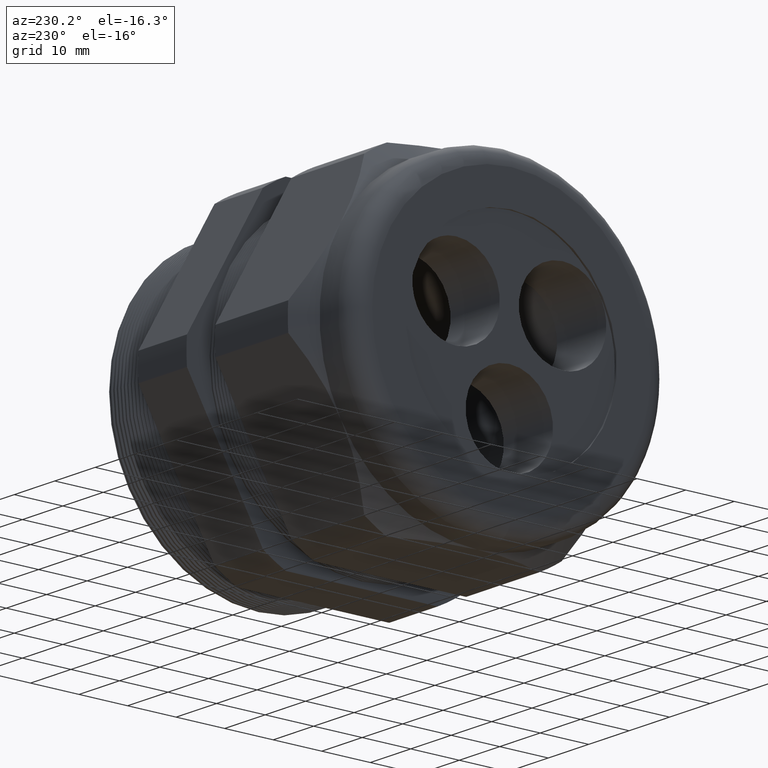
[diagram: clean part render]
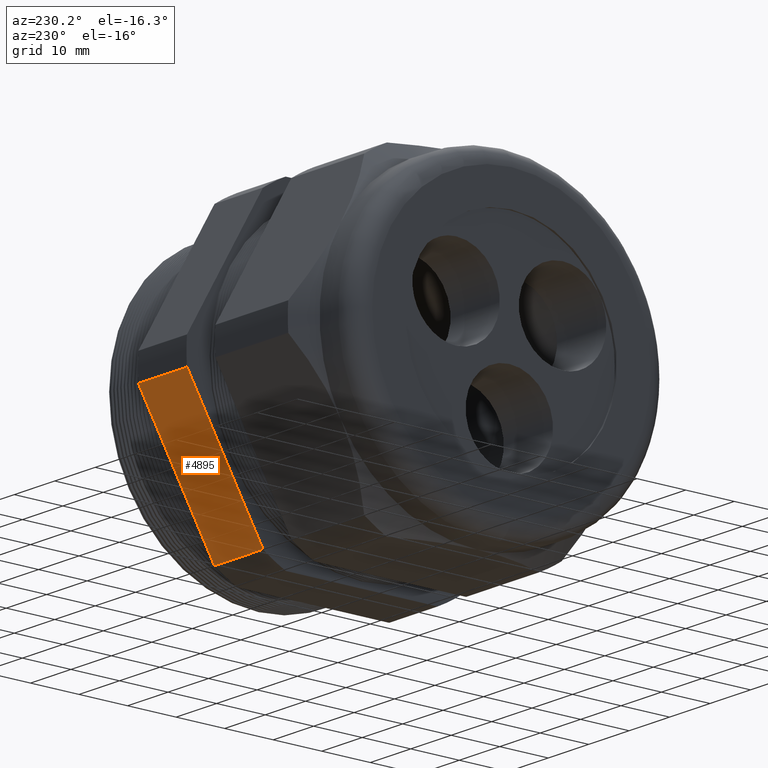
[diagram: same view with one face highlighted and labeled with its STEP entity id]
A machine part, auxiliary view. The second image highlights one B-rep face of the part: STEP entity #4895.
In plain terms, the highlighted planar face has unit normal (0, 0.866, -0.5).
Its self-contained STEP definition (entity closure, byte-faithful):
#2698 = DIRECTION ( 'NONE',  ( 0.0000000000000000000, 0.4999999999999998300, 0.8660254037844388200 ) ) ;
#2699 = DIRECTION ( 'NONE',  ( 0.0000000000000000000, 0.8660254037844388200, -0.4999999999999998300 ) ) ;
#2700 = CARTESIAN_POINT ( 'NONE',  ( 0.2400000000000001900, 1.416843767287496500, -0.1059546086707606900 ) ) ;
#2701 = AXIS2_PLACEMENT_3D ( 'NONE', #2700, #2699, #2698 ) ;
#2702 = PLANE ( 'NONE',  #2701 ) ;
#2703 = FACE_OUTER_BOUND ( 'NONE', #4874, .T. ) ;
#2794 = CARTESIAN_POINT ( 'NONE',  ( 0.2400000000000001900, 1.416843767287496500, -0.1059546086707606900 ) ) ;
#2795 = LINE ( 'NONE', #2794, #2855 ) ;
#2796 = CARTESIAN_POINT ( 'NONE',  ( -0.7824400000000001400, 1.416843767287496500, -0.1059546086707606900 ) ) ;
#2811 = DIRECTION ( 'NONE',  ( -1.000000000000000000, 0.0000000000000000000, 0.0000000000000000000 ) ) ;
#2812 = VECTOR ( 'NONE', #2811, 39.37007874015748100 ) ;
#2813 = CARTESIAN_POINT ( 'NONE',  ( 0.2400000000000001900, 0.8001812664006665600, -1.174045391329238800 ) ) ;
#2818 = LINE ( 'NONE', #2813, #2812 ) ;
#2844 = DIRECTION ( 'NONE',  ( 0.0000000000000000000, -0.4999999999999998300, -0.8660254037844388200 ) ) ;
#2845 = VECTOR ( 'NONE', #2844, 39.37007874015748100 ) ;
#2846 = CARTESIAN_POINT ( 'NONE',  ( -0.7824400000000001400, 1.748512516844080900, 0.4685125168440814600 ) ) ;
#2852 = LINE ( 'NONE', #2846, #2845 ) ;
#2853 = CARTESIAN_POINT ( 'NONE',  ( -0.7824400000000001400, 0.8001812664006662200, -1.174045391329238800 ) ) ;
#2854 = DIRECTION ( 'NONE',  ( -1.000000000000000000, 0.0000000000000000000, 0.0000000000000000000 ) ) ;
#2855 = VECTOR ( 'NONE', #2854, 39.37007874015748100 ) ;
#3110 = CARTESIAN_POINT ( 'NONE',  ( -0.3100000000000000000, 1.416843767287496500, -0.1059546086707606700 ) ) ;
#3157 = DIRECTION ( 'NONE',  ( 0.0000000000000000000, 0.4999999999999998300, 0.8660254037844388200 ) ) ;
#3158 = VECTOR ( 'NONE', #3157, 39.37007874015748100 ) ;
#3159 = CARTESIAN_POINT ( 'NONE',  ( -0.3100000000000000000, 1.748512516844080900, 0.4685125168440814600 ) ) ;
#3160 = LINE ( 'NONE', #3159, #3158 ) ;
#3167 = CARTESIAN_POINT ( 'NONE',  ( -0.3100000000000000000, 0.8001812664006665600, -1.174045391329238800 ) ) ;
#4874 = EDGE_LOOP ( 'NONE', ( #4955, #4958, #4950, #4956 ) ) ;
#4895 = ADVANCED_FACE ( 'NONE', ( #2703 ), #2702, .T. ) ;
#4941 = EDGE_CURVE ( 'NONE', #5110, #4951, #2818, .T. ) ;
#4948 = VERTEX_POINT ( 'NONE', #2796 ) ;
#4949 = EDGE_CURVE ( 'NONE', #5107, #4948, #2795, .T. ) ;
#4950 = ORIENTED_EDGE ( 'NONE', *, *, #4941, .T. ) ;
#4951 = VERTEX_POINT ( 'NONE', #2853 ) ;
#4955 = ORIENTED_EDGE ( 'NONE', *, *, #4949, .F. ) ;
#4956 = ORIENTED_EDGE ( 'NONE', *, *, #4957, .F. ) ;
#4957 = EDGE_CURVE ( 'NONE', #4948, #4951, #2852, .T. ) ;
#4958 = ORIENTED_EDGE ( 'NONE', *, *, #5117, .F. ) ;
#5107 = VERTEX_POINT ( 'NONE', #3110 ) ;
#5110 = VERTEX_POINT ( 'NONE', #3167 ) ;
#5117 = EDGE_CURVE ( 'NONE', #5110, #5107, #3160, .T. ) ;